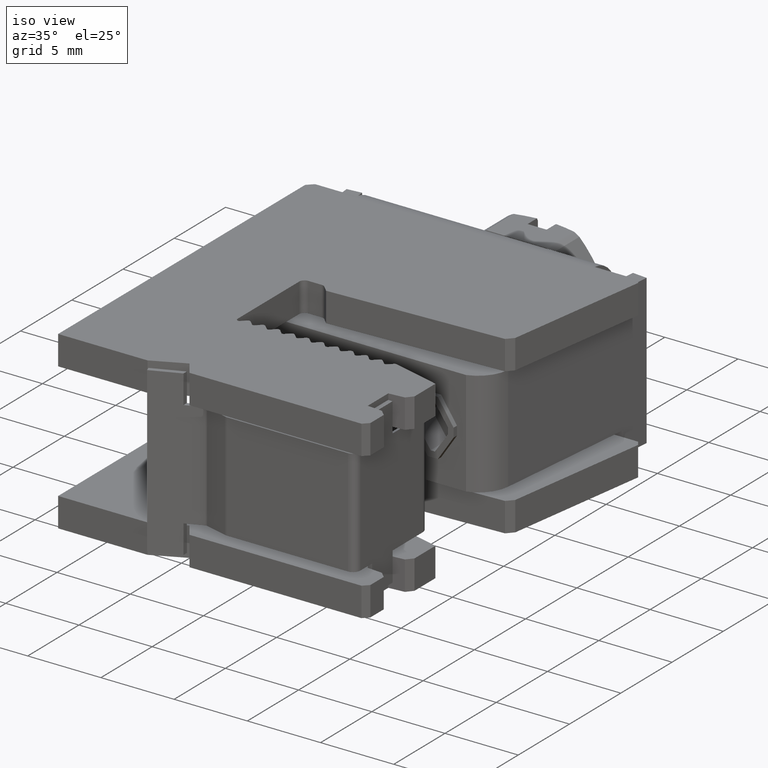
[diagram: clean part render]
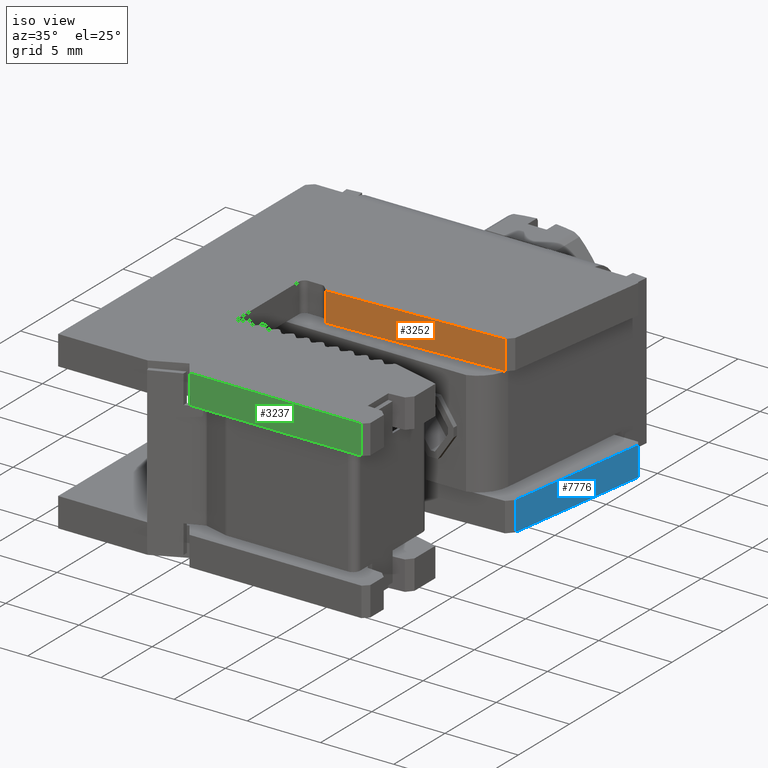
[diagram: same view with three faces highlighted in distinct colors, each labeled with its STEP entity id]
A machine part, iso view with three faces highlighted in distinct colors.
Their STEP definitions:

[orange] entity #3252 — the highlighted planar face has unit normal (0.0436, -0.999, 0).
#1535 = VECTOR ( 'NONE', #10607, 1000.000000000000000 ) ;
#1578 = VECTOR ( 'NONE', #10658, 1000.000000000000000 ) ;
#1610 = VECTOR ( 'NONE', #9846, 1000.000000000000000 ) ;
#2226 = VERTEX_POINT ( 'NONE', #4382 ) ;
#2246 = VERTEX_POINT ( 'NONE', #3480 ) ;
#2270 = VERTEX_POINT ( 'NONE', #3462 ) ;
#2277 = VERTEX_POINT ( 'NONE', #3463 ) ;
#2491 = VECTOR ( 'NONE', #3599, 1000.000000000000100 ) ;
#2591 = AXIS2_PLACEMENT_3D ( 'NONE', #4274, #4276, #4288 ) ;
#3116 = EDGE_CURVE ( 'NONE', #2270, #2246, #3627, .T. ) ;
#3252 = ADVANCED_FACE ( 'NONE', ( #4287 ), #4293, .T. ) ;
#3462 = CARTESIAN_POINT ( 'NONE',  ( 6.465278230130921100, 12.01100000000582200, 9.999999999999994700 ) ) ;
#3463 = CARTESIAN_POINT ( 'NONE',  ( 18.32094110722047000, 12.52862942002462900, 12.00000000000000000 ) ) ;
#3480 = CARTESIAN_POINT ( 'NONE',  ( 18.32094110722047400, 12.52862942002462900, 9.999999999999994700 ) ) ;
#3599 = DIRECTION ( 'NONE',  ( 0.9990482215818591300, 0.04361938736530521900, 0.0000000000000000000 ) ) ;
#3622 = CARTESIAN_POINT ( 'NONE',  ( 6.465278230130921100, 12.01100000000582200, 9.999999999999996400 ) ) ;
#3627 = LINE ( 'NONE', #3622, #2491 ) ;
#4274 = CARTESIAN_POINT ( 'NONE',  ( 6.780810866941224400, 12.02477645244736100, 12.00000000000000000 ) ) ;
#4276 = DIRECTION ( 'NONE',  ( 0.04361938736530511500, -0.9990482215818591300, 0.0000000000000000000 ) ) ;
#4287 = FACE_OUTER_BOUND ( 'NONE', #6484, .T. ) ;
#4288 = DIRECTION ( 'NONE',  ( 0.9990482215818591300, 0.04361938736530511500, 0.0000000000000000000 ) ) ;
#4293 = PLANE ( 'NONE',  #2591 ) ;
#4382 = CARTESIAN_POINT ( 'NONE',  ( 6.465278230130915700, 12.01100000000582400, 12.00000000000000000 ) ) ;
#5955 = ORIENTED_EDGE ( 'NONE', *, *, #3116, .T. ) ;
#5968 = ORIENTED_EDGE ( 'NONE', *, *, #8081, .T. ) ;
#5989 = ORIENTED_EDGE ( 'NONE', *, *, #8026, .T. ) ;
#6032 = ORIENTED_EDGE ( 'NONE', *, *, #8009, .T. ) ;
#6484 = EDGE_LOOP ( 'NONE', ( #5968, #5989, #6032, #5955 ) ) ;
#8009 = EDGE_CURVE ( 'NONE', #2226, #2270, #10628, .T. ) ;
#8026 = EDGE_CURVE ( 'NONE', #2277, #2226, #10666, .T. ) ;
#8081 = EDGE_CURVE ( 'NONE', #2246, #2277, #9845, .T. ) ;
#9845 = LINE ( 'NONE', #9851, #1610 ) ;
#9846 = DIRECTION ( 'NONE',  ( -0.0000000000000000000, 0.0000000000000000000, 1.000000000000000000 ) ) ;
#9851 = CARTESIAN_POINT ( 'NONE',  ( 18.32094110722047000, 12.52862942002462900, 12.00000000000000000 ) ) ;
#10607 = DIRECTION ( 'NONE',  ( 0.0000000000000000000, -0.0000000000000000000, -1.000000000000000000 ) ) ;
#10628 = LINE ( 'NONE', #10637, #1535 ) ;
#10637 = CARTESIAN_POINT ( 'NONE',  ( 6.465278230130921100, 12.01100000000582200, 12.00000000000000000 ) ) ;
#10658 = DIRECTION ( 'NONE',  ( -0.9990482215818591300, -0.04361938736530511500, -0.0000000000000000000 ) ) ;
#10666 = LINE ( 'NONE', #10679, #1578 ) ;
#10679 = CARTESIAN_POINT ( 'NONE',  ( 6.780810866941224400, 12.02477645244736100, 12.00000000000000000 ) ) ;

[blue] entity #7776 — the highlighted planar face has unit normal (-0.9894, 0.1451, 0).
#336 = LINE ( 'NONE', #344, #2804 ) ;
#338 = DIRECTION ( 'NONE',  ( 0.0000000000000000000, 0.0000000000000000000, 1.000000000000000000 ) ) ;
#344 = CARTESIAN_POINT ( 'NONE',  ( 18.71701019759071700, 12.96086298535677600, 12.00000000000000000 ) ) ;
#1031 = DIRECTION ( 'NONE',  ( -0.1450633270288673200, -0.9894223724736144200, 0.0000000000000000000 ) ) ;
#1038 = CARTESIAN_POINT ( 'NONE',  ( 14.93701703732164200, -12.82104810939710400, 12.00000000000000000 ) ) ;
#1052 = FACE_OUTER_BOUND ( 'NONE', #6334, .T. ) ;
#1064 = PLANE ( 'NONE',  #3068 ) ;
#1065 = DIRECTION ( 'NONE',  ( -0.9894223724736145300, 0.1450633270288673400, 0.0000000000000000000 ) ) ;
#1514 = VECTOR ( 'NONE', #10618, 1000.000000000000200 ) ;
#2126 = VECTOR ( 'NONE', #8949, 1000.000000000000100 ) ;
#2141 = VECTOR ( 'NONE', #8884, 1000.000000000000000 ) ;
#2263 = VERTEX_POINT ( 'NONE', #3476 ) ;
#2285 = VERTEX_POINT ( 'NONE', #3465 ) ;
#2298 = VERTEX_POINT ( 'NONE', #3478 ) ;
#2309 = VERTEX_POINT ( 'NONE', #3502 ) ;
#2804 = VECTOR ( 'NONE', #338, 1000.000000000000000 ) ;
#3068 = AXIS2_PLACEMENT_3D ( 'NONE', #1038, #1065, #1031 ) ;
#3457 = EDGE_CURVE ( 'NONE', #2309, #2298, #336, .T. ) ;
#3465 = CARTESIAN_POINT ( 'NONE',  ( 20.17074845210280600, 22.87626463920668800, 0.0000000000000000000 ) ) ;
#3476 = CARTESIAN_POINT ( 'NONE',  ( 20.17074845210281000, 22.87626463920669600, 1.999999999999995800 ) ) ;
#3478 = CARTESIAN_POINT ( 'NONE',  ( 18.71701019759071400, 12.96086298535677300, 1.999999999999996200 ) ) ;
#3502 = CARTESIAN_POINT ( 'NONE',  ( 18.71701019759071700, 12.96086298535677300, -3.903127820947816000E-015 ) ) ;
#6175 = ORIENTED_EDGE ( 'NONE', *, *, #7946, .F. ) ;
#6209 = ORIENTED_EDGE ( 'NONE', *, *, #8019, .T. ) ;
#6210 = ORIENTED_EDGE ( 'NONE', *, *, #3457, .F. ) ;
#6211 = ORIENTED_EDGE ( 'NONE', *, *, #7959, .F. ) ;
#6334 = EDGE_LOOP ( 'NONE', ( #6211, #6175, #6209, #6210 ) ) ;
#7776 = ADVANCED_FACE ( 'NONE', ( #1052 ), #1064, .F. ) ;
#7946 = EDGE_CURVE ( 'NONE', #2263, #2285, #8897, .T. ) ;
#7959 = EDGE_CURVE ( 'NONE', #2285, #2309, #8932, .T. ) ;
#8019 = EDGE_CURVE ( 'NONE', #2263, #2298, #10609, .T. ) ;
#8884 = DIRECTION ( 'NONE',  ( -0.0000000000000000000, -0.0000000000000000000, -1.000000000000000000 ) ) ;
#8897 = LINE ( 'NONE', #8898, #2141 ) ;
#8898 = CARTESIAN_POINT ( 'NONE',  ( 20.17074845210281000, 22.87626463920669600, 12.00000000000000000 ) ) ;
#8932 = LINE ( 'NONE', #8950, #2126 ) ;
#8949 = DIRECTION ( 'NONE',  ( -0.1450633270288673200, -0.9894223724736144200, 0.0000000000000000000 ) ) ;
#8950 = CARTESIAN_POINT ( 'NONE',  ( 14.93701703732164200, -12.82104810939710400, -6.938893903907228400E-015 ) ) ;
#10609 = LINE ( 'NONE', #10617, #1514 ) ;
#10617 = CARTESIAN_POINT ( 'NONE',  ( 20.17074845210281000, 22.87626463920668800, 1.999999999999999100 ) ) ;
#10618 = DIRECTION ( 'NONE',  ( -0.1450633270288679300, -0.9894223724736143100, -8.655091730551432200E-017 ) ) ;

[green] entity #3237 — the highlighted planar face has unit normal (0, 1, 0).
#1502 = VECTOR ( 'NONE', #3288, 1000.000000000000000 ) ;
#1518 = VECTOR ( 'NONE', #10598, 1000.000000000000000 ) ;
#1580 = VECTOR ( 'NONE', #10709, 1000.000000000000000 ) ;
#2223 = VERTEX_POINT ( 'NONE', #4376 ) ;
#2238 = VERTEX_POINT ( 'NONE', #4380 ) ;
#2253 = VERTEX_POINT ( 'NONE', #3453 ) ;
#2264 = VERTEX_POINT ( 'NONE', #3435 ) ;
#2523 = VECTOR ( 'NONE', #3698, 1000.000000000000000 ) ;
#2592 = AXIS2_PLACEMENT_3D ( 'NONE', #4265, #4248, #4227 ) ;
#3147 = EDGE_CURVE ( 'NONE', #2223, #2253, #3724, .T. ) ;
#3237 = ADVANCED_FACE ( 'NONE', ( #4234 ), #4212, .F. ) ;
#3282 = LINE ( 'NONE', #3287, #1502 ) ;
#3287 = CARTESIAN_POINT ( 'NONE',  ( 6.440703507310097100, -1.269000000010278100, 12.00000000000000000 ) ) ;
#3288 = DIRECTION ( 'NONE',  ( 0.0000000000000000000, -0.0000000000000000000, 1.000000000000000000 ) ) ;
#3435 = CARTESIAN_POINT ( 'NONE',  ( 18.17927823012253100, -1.269000000010277700, 12.00000000000000000 ) ) ;
#3453 = CARTESIAN_POINT ( 'NONE',  ( 18.17927823012253800, -1.269000000010274400, 9.999999999999994700 ) ) ;
#3698 = DIRECTION ( 'NONE',  ( 1.000000000000000000, -3.217610781289461000E-033, 2.171974429317391200E-017 ) ) ;
#3724 = LINE ( 'NONE', #3728, #2523 ) ;
#3728 = CARTESIAN_POINT ( 'NONE',  ( -12.72331469668145400, -1.269000000010275900, 9.999999999999994700 ) ) ;
#4212 = PLANE ( 'NONE',  #2592 ) ;
#4227 = DIRECTION ( 'NONE',  ( 0.0000000000000000000, -0.0000000000000000000, 1.000000000000000000 ) ) ;
#4234 = FACE_OUTER_BOUND ( 'NONE', #6388, .T. ) ;
#4248 = DIRECTION ( 'NONE',  ( 0.0000000000000000000, 1.000000000000000000, 0.0000000000000000000 ) ) ;
#4265 = CARTESIAN_POINT ( 'NONE',  ( 7.822759001598525300, -1.269000000010278100, 12.00000000000000000 ) ) ;
#4376 = CARTESIAN_POINT ( 'NONE',  ( 6.440703507310095300, -1.269000000010275900, 9.999999999999994700 ) ) ;
#4380 = CARTESIAN_POINT ( 'NONE',  ( 6.440703507310096200, -1.269000000010278100, 12.00000000000000000 ) ) ;
#5915 = ORIENTED_EDGE ( 'NONE', *, *, #3147, .T. ) ;
#5929 = ORIENTED_EDGE ( 'NONE', *, *, #7986, .F. ) ;
#5972 = ORIENTED_EDGE ( 'NONE', *, *, #8013, .F. ) ;
#5973 = ORIENTED_EDGE ( 'NONE', *, *, #8042, .F. ) ;
#6388 = EDGE_LOOP ( 'NONE', ( #5973, #5929, #5915, #5972 ) ) ;
#7986 = EDGE_CURVE ( 'NONE', #2223, #2238, #3282, .T. ) ;
#8013 = EDGE_CURVE ( 'NONE', #2264, #2253, #10624, .T. ) ;
#8042 = EDGE_CURVE ( 'NONE', #2238, #2264, #10701, .T. ) ;
#10598 = DIRECTION ( 'NONE',  ( -0.0000000000000000000, 0.0000000000000000000, -1.000000000000000000 ) ) ;
#10624 = LINE ( 'NONE', #10630, #1518 ) ;
#10630 = CARTESIAN_POINT ( 'NONE',  ( 18.17927823012253100, -1.269000000010278100, 12.00000000000000000 ) ) ;
#10701 = LINE ( 'NONE', #10726, #1580 ) ;
#10709 = DIRECTION ( 'NONE',  ( 1.000000000000000000, 0.0000000000000000000, -0.0000000000000000000 ) ) ;
#10726 = CARTESIAN_POINT ( 'NONE',  ( 7.822759001598525300, -1.269000000010278100, 12.00000000000000000 ) ) ;